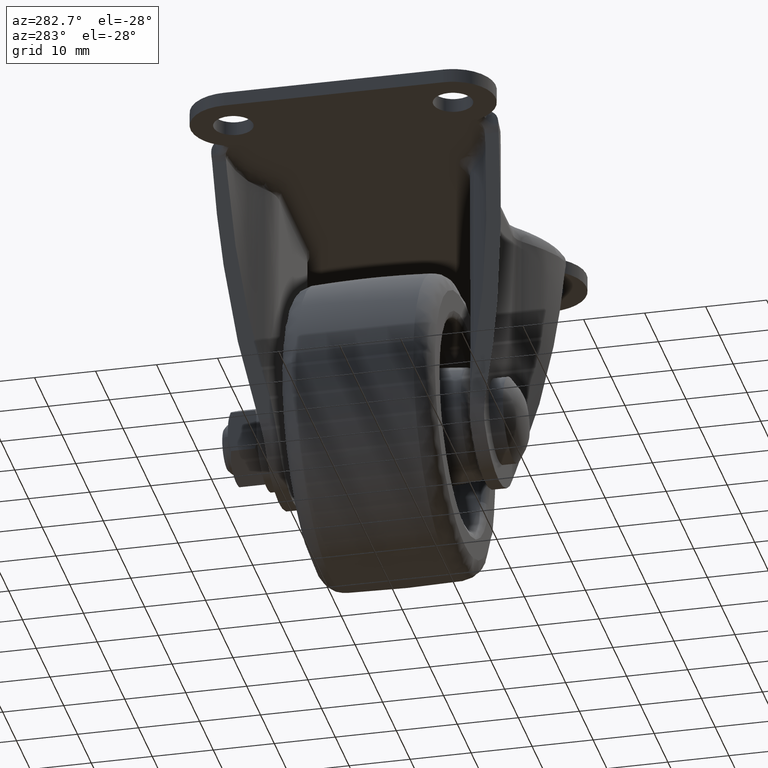
[diagram: clean part render]
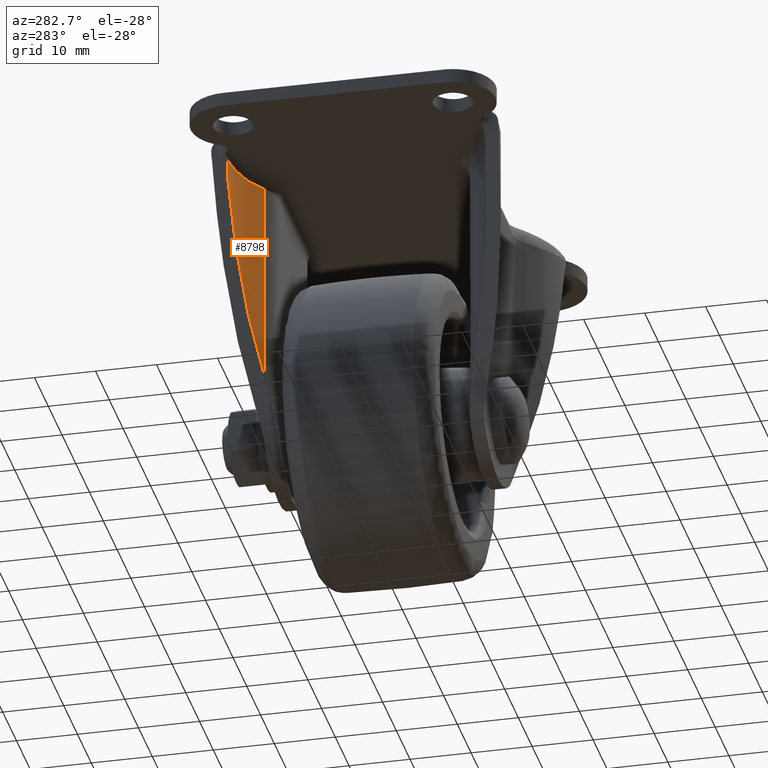
[diagram: same view with one face highlighted and labeled with its STEP entity id]
A machine part, auxiliary view. The second image highlights one B-rep face of the part: STEP entity #8798.
In plain terms, the highlighted face is a freeform B-spline surface patch.
Its self-contained STEP definition (entity closure, byte-faithful):
#7502=CARTESIAN_POINT('',(-23.483673677439100,21.156677373366151,-3.300000000000000));
#7503=VERTEX_POINT('',#7502);
#7578=CARTESIAN_POINT('',(-14.055270806714200,17.239999977699100,-4.050000000000000));
#7579=VERTEX_POINT('',#7578);
#7600=CARTESIAN_POINT('',(-14.055270806714200,17.239999977699100,-4.050000000000000));
#7601=CARTESIAN_POINT('',(-14.175333178910780,17.342330177388011,-4.049048672364833));
#7602=CARTESIAN_POINT('',(-14.421353374816089,17.552013605123129,-4.047099310604351));
#7603=CARTESIAN_POINT('',(-14.811069847963021,17.859548305400072,-4.032230375406252));
#7604=CARTESIAN_POINT('',(-15.228064354378150,18.169287008568961,-4.008781994297470));
#7605=CARTESIAN_POINT('',(-15.674137627445370,18.478084420517281,-3.975714228092052));
#7606=CARTESIAN_POINT('',(-16.288358683187589,18.873056984003679,-3.921239272680574));
#7607=CARTESIAN_POINT('',(-17.203337578862509,19.397618597988860,-3.821255104769393));
#7608=CARTESIAN_POINT('',(-18.443697867889490,19.982280927963281,-3.675004404515531));
#7609=CARTESIAN_POINT('',(-19.733341165318478,20.448549179950259,-3.528781317340609));
#7610=CARTESIAN_POINT('',(-20.867422144652661,20.758881590109770,-3.417244090279505));
#7611=CARTESIAN_POINT('',(-21.807097431951320,20.953295805500890,-3.350138684574360));
#7612=CARTESIAN_POINT('',(-22.663396251609129,21.084694232200370,-3.308363190495993));
#7613=CARTESIAN_POINT('',(-23.217405111340810,21.133311074138710,-3.302714758045555));
#7614=CARTESIAN_POINT('',(-23.483673677439121,21.156677373366151,-3.299999999999970));
#7615=B_SPLINE_CURVE_WITH_KNOTS('',3,(#7600,#7601,#7602,#7603,#7604,#7605,#7606,#7607,#7608,#7609,#7610,#7611,#7612,#7613,#7614),.UNSPECIFIED.,.F.,.U.,(4,1,1,1,1,1,1,1,1,1,1,1,4),(0.0,0.045428786747744,0.093087950394498,0.142992181769992,0.195154270657690,0.249585411066928,0.353842150626518,0.500011970150753,0.646150228198126,0.750438542086624,0.839871309167577,0.923038709309089,1.0),.UNSPECIFIED.);
#7616=EDGE_CURVE('',#7579,#7503,#7615,.T.);
#8212=CARTESIAN_POINT('',(-23.483673677439100,21.156677373366250,-5.731148101934090));
#8213=VERTEX_POINT('',#8212);
#8257=CARTESIAN_POINT('',(-14.055270806714200,17.239999977699100,-37.561725201100153));
#8258=VERTEX_POINT('',#8257);
#8272=CARTESIAN_POINT('',(-14.055270806714200,17.239999977699100,-37.561725201100153));
#8273=CARTESIAN_POINT('',(-18.119255100473115,20.763571078272275,-23.841589652591580));
#8274=CARTESIAN_POINT('',(-23.483673677439100,21.156677373366250,-5.731148101934090));
#8282=(BOUNDED_CURVE()B_SPLINE_CURVE(2,(#8272,#8273,#8274),.UNSPECIFIED.,.F.,.U.)CURVE()GEOMETRIC_REPRESENTATION_ITEM()QUASI_UNIFORM_CURVE()RATIONAL_B_SPLINE_CURVE((1.0,0.949055173523642,1.0))REPRESENTATION_ITEM(''));
#8283=EDGE_CURVE('',#8258,#8213,#8282,.T.);
#8762=CARTESIAN_POINT('',(-23.483673677439100,21.156677373366250,-5.731148101934090));
#8763=CARTESIAN_POINT('',(-23.483673677439100,21.156677373366151,-3.300000000000000));
#8764=QUASI_UNIFORM_CURVE('',1,(#8762,#8763),.UNSPECIFIED.,.F.,.U.);
#8765=EDGE_CURVE('',#8213,#7503,#8764,.T.);
#8774=CARTESIAN_POINT('',(-23.981892417386469,21.185479611458518,-38.418268331127649));
#8775=CARTESIAN_POINT('',(-23.981892417386469,21.185479611458518,-2.422043291721806));
#8776=CARTESIAN_POINT('',(-18.041833569930951,20.933810764256670,-38.418268331127656));
#8777=CARTESIAN_POINT('',(-18.041833569930951,20.933810764256670,-2.422043291721807));
#8778=CARTESIAN_POINT('',(-13.674752022073330,16.899429141969573,-38.418268331127649));
#8779=CARTESIAN_POINT('',(-13.674752022073330,16.899429141969573,-2.422043291721806));
#8787=(BOUNDED_SURFACE()B_SPLINE_SURFACE(1,2,((#8774,#8776,#8778),(#8775,#8777,#8779)),.UNSPECIFIED.,.F.,.F.,.U.)B_SPLINE_SURFACE_WITH_KNOTS((2,2),(3,3),(0.0,35.996225039405843),(0.0,11.515224694847831),.UNSPECIFIED.)GEOMETRIC_REPRESENTATION_ITEM()RATIONAL_B_SPLINE_SURFACE(((1.0,0.934861658846367,0.991679488674253),(1.0,0.934861658846367,0.991679488674253)))REPRESENTATION_ITEM('')SURFACE());
#8788=CARTESIAN_POINT('',(-14.055270806714200,17.239999977699100,-37.561725201100153));
#8789=CARTESIAN_POINT('',(-14.055270806714200,17.239999977699100,-4.050000000000000));
#8790=QUASI_UNIFORM_CURVE('',1,(#8788,#8789),.UNSPECIFIED.,.F.,.U.);
#8791=EDGE_CURVE('',#8258,#7579,#8790,.T.);
#8792=ORIENTED_EDGE('',*,*,#8791,.T.);
#8793=ORIENTED_EDGE('',*,*,#7616,.T.);
#8794=ORIENTED_EDGE('',*,*,#8765,.F.);
#8795=ORIENTED_EDGE('',*,*,#8283,.F.);
#8796=EDGE_LOOP('',(#8792,#8793,#8794,#8795));
#8797=FACE_OUTER_BOUND('',#8796,.T.);
#8798=ADVANCED_FACE('',(#8797),#8787,.F.);